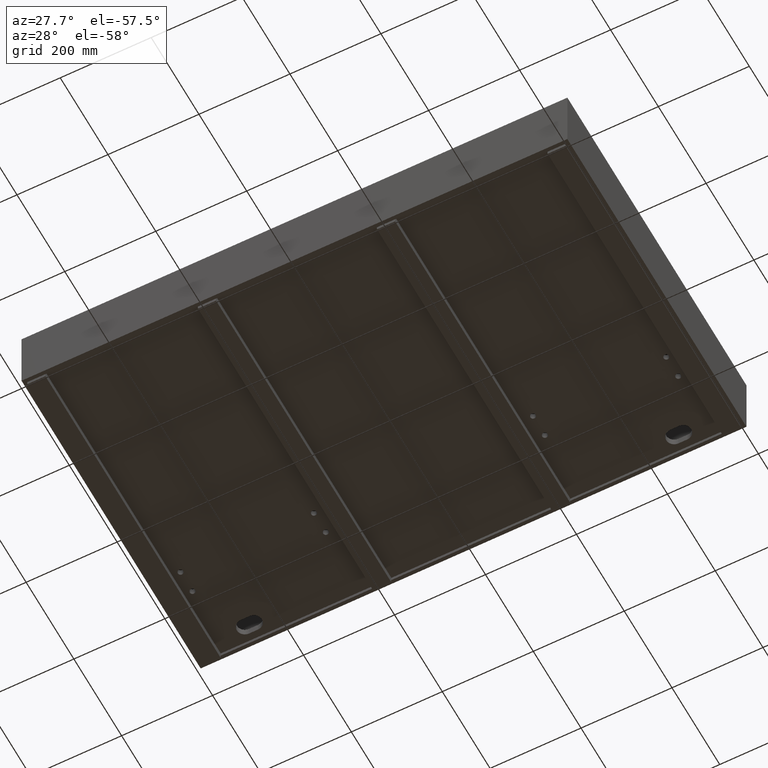
[diagram: clean part render]
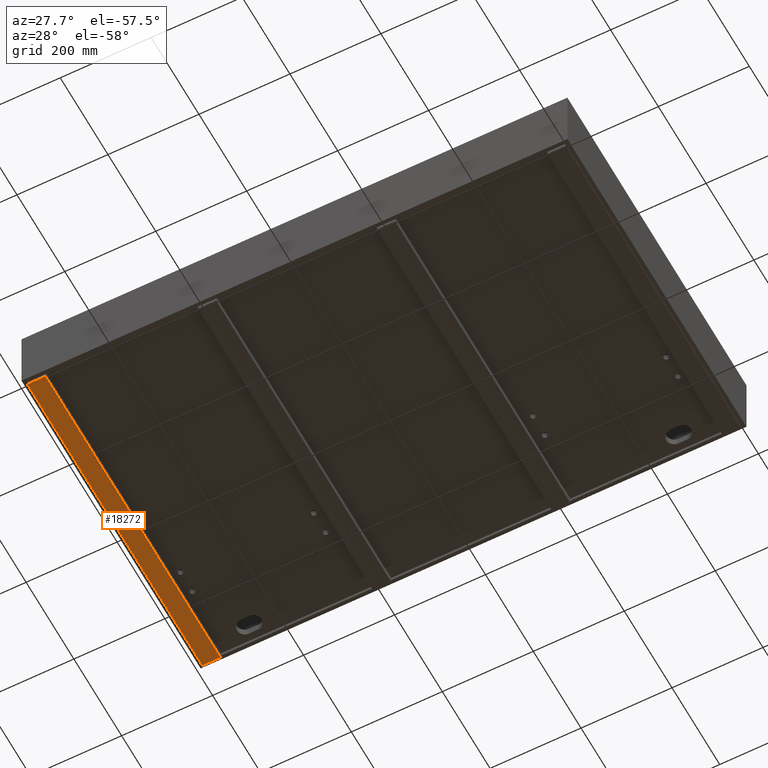
[diagram: same view with one face highlighted and labeled with its STEP entity id]
A machine part, auxiliary view. The second image highlights one B-rep face of the part: STEP entity #18272.
In plain terms, the highlighted planar face has unit normal (0, 0, 1).
Its self-contained STEP definition (entity closure, byte-faithful):
#100 = ORIENTED_EDGE ( 'NONE', *, *, #15119, .T. ) ;
#797 = CARTESIAN_POINT ( 'NONE',  ( 48.00000000000004974, 741.4999000000001388, -157.0000000000002558 ) ) ;
#3072 = CARTESIAN_POINT ( 'NONE',  ( 7.999999999999916511, 8.499999999999952038, -157.0000000000002558 ) ) ;
#3479 = ORIENTED_EDGE ( 'NONE', *, *, #11541, .T. ) ;
#4567 = CARTESIAN_POINT ( 'NONE',  ( -3.469446951953614189E-15, 0.0000000000000000000, -157.0000000000002558 ) ) ;
#4663 = CARTESIAN_POINT ( 'NONE',  ( 8.000000000000007105, 741.4999000000001388, -157.0000000000002558 ) ) ;
#4808 = LINE ( 'NONE', #10544, #9333 ) ;
#4873 = CARTESIAN_POINT ( 'NONE',  ( 7.999999999999916511, 8.499999999999952038, -157.0000000000002558 ) ) ;
#4988 = VERTEX_POINT ( 'NONE', #5650 ) ;
#5497 = ORIENTED_EDGE ( 'NONE', *, *, #6737, .T. ) ;
#5581 = AXIS2_PLACEMENT_3D ( 'NONE', #4567, #10305, #16033 ) ;
#5650 = CARTESIAN_POINT ( 'NONE',  ( 8.000000000000007105, 741.4999000000001388, -157.0000000000002558 ) ) ;
#6054 = LINE ( 'NONE', #11784, #15483 ) ;
#6153 = VECTOR ( 'NONE', #10613, 1000.000000000000000 ) ;
#6737 = EDGE_CURVE ( 'NONE', #18335, #10155, #6054, .T. ) ;
#7511 = EDGE_LOOP ( 'NONE', ( #15633, #3479, #5497, #100 ) ) ;
#9333 = VECTOR ( 'NONE', #16270, 1000.000000000000000 ) ;
#10155 = VERTEX_POINT ( 'NONE', #16400 ) ;
#10305 = DIRECTION ( 'NONE',  ( 0.0000000000000000000, 0.0000000000000000000, 1.000000000000000000 ) ) ;
#10402 = DIRECTION ( 'NONE',  ( 1.230636194504173321E-16, 1.000000000000000000, 7.703719777548943412E-34 ) ) ;
#10544 = CARTESIAN_POINT ( 'NONE',  ( 8.000000000000007105, 741.4999000000001388, -157.0000000000002558 ) ) ;
#10613 = DIRECTION ( 'NONE',  ( -1.000000000000000000, -1.084202172485503448E-15, 0.0000000000000000000 ) ) ;
#11541 = EDGE_CURVE ( 'NONE', #4988, #18335, #4808, .T. ) ;
#11704 = FACE_OUTER_BOUND ( 'NONE', #7511, .T. ) ;
#11784 = CARTESIAN_POINT ( 'NONE',  ( 48.00000000000004974, 741.4999000000001388, -157.0000000000002558 ) ) ;
#15119 = EDGE_CURVE ( 'NONE', #10155, #16668, #17743, .T. ) ;
#15483 = VECTOR ( 'NONE', #17510, 1000.000000000000000 ) ;
#15633 = ORIENTED_EDGE ( 'NONE', *, *, #17067, .T. ) ;
#16033 = DIRECTION ( 'NONE',  ( 1.000000000000000000, -9.567784757818997898E-35, 0.0000000000000000000 ) ) ;
#16270 = DIRECTION ( 'NONE',  ( 1.000000000000000000, -9.567784757818997898E-35, 0.0000000000000000000 ) ) ;
#16400 = CARTESIAN_POINT ( 'NONE',  ( 47.99999999999995026, 8.500000000000007105, -157.0000000000002558 ) ) ;
#16668 = VERTEX_POINT ( 'NONE', #3072 ) ;
#17067 = EDGE_CURVE ( 'NONE', #16668, #4988, #17527, .T. ) ;
#17432 = PLANE ( 'NONE',  #5581 ) ;
#17510 = DIRECTION ( 'NONE',  ( -1.325300517158340462E-16, -1.000000000000000000, 0.0000000000000000000 ) ) ;
#17527 = LINE ( 'NONE', #4663, #18156 ) ;
#17743 = LINE ( 'NONE', #4873, #6153 ) ;
#18156 = VECTOR ( 'NONE', #10402, 1000.000000000000000 ) ;
#18272 = ADVANCED_FACE ( 'NONE', ( #11704 ), #17432, .F. ) ;
#18335 = VERTEX_POINT ( 'NONE', #797 ) ;